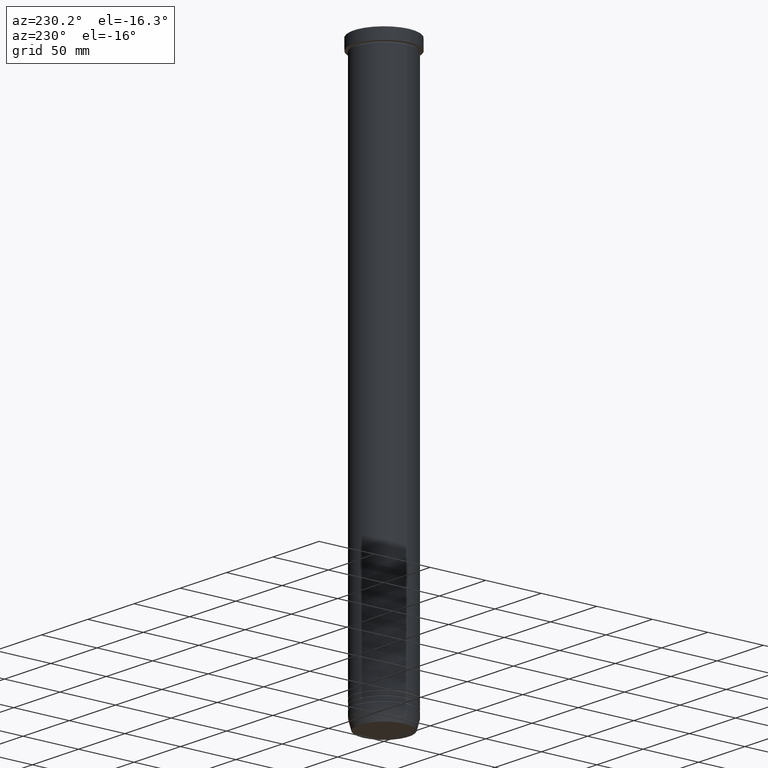
[diagram: clean part render]
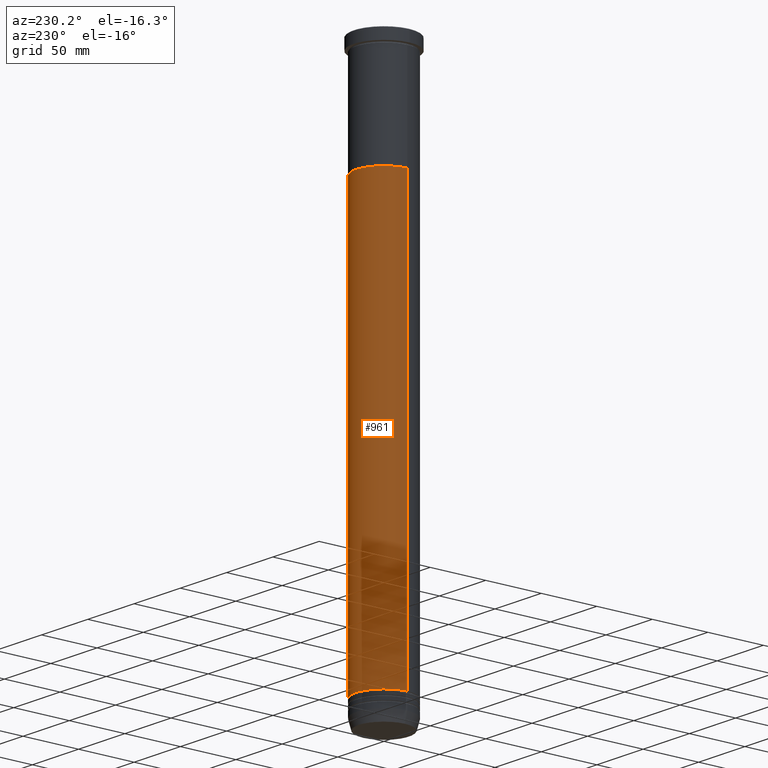
[diagram: same view with one face highlighted and labeled with its STEP entity id]
A machine part, auxiliary view. The second image highlights one B-rep face of the part: STEP entity #961.
In plain terms, the highlighted cylindrical surface (edge-blend (fillet) strip) has radius 25 mm, axis along (-0, -0, 1).
Its self-contained STEP definition (entity closure, byte-faithful):
#19 = CARTESIAN_POINT ( 'NONE',  ( 0.000000000000000000, 0.000000000000000000, 0.000000000000000000 ) ) ;
#23 = DIRECTION ( 'NONE',  ( -0.000000000000000000, -0.000000000000000000, 1.000000000000000000 ) ) ;
#32 = CARTESIAN_POINT ( 'NONE',  ( 0.000000000000000000, 0.000000000000000000, -100.0000000000000000 ) ) ;
#40 = DIRECTION ( 'NONE',  ( 1.000000000000000000, 0.000000000000000000, 0.000000000000000000 ) ) ;
#95 = AXIS2_PLACEMENT_3D ( 'NONE', #32, #683, #104 ) ;
#104 = DIRECTION ( 'NONE',  ( 1.000000000000000000, 0.000000000000000000, 0.000000000000000000 ) ) ;
#105 = CARTESIAN_POINT ( 'NONE',  ( -25.00000000000000355, 3.061616997868383437E-15, -100.0000000000000000 ) ) ;
#123 = VERTEX_POINT ( 'NONE', #378 ) ;
#185 = DIRECTION ( 'NONE',  ( 1.000000000000000000, 0.000000000000000000, 0.000000000000000000 ) ) ;
#189 = FACE_OUTER_BOUND ( 'NONE', #592, .T. ) ;
#206 = CARTESIAN_POINT ( 'NONE',  ( 0.000000000000000000, 0.000000000000000000, -477.0000000000001137 ) ) ;
#271 = DIRECTION ( 'NONE',  ( -0.000000000000000000, -0.000000000000000000, 1.000000000000000000 ) ) ;
#294 = CIRCLE ( 'NONE', #95, 25.00000000000000000 ) ;
#368 = VERTEX_POINT ( 'NONE', #105 ) ;
#373 = CYLINDRICAL_SURFACE ( 'NONE', #632, 24.99999999999999645 ) ;
#378 = CARTESIAN_POINT ( 'NONE',  ( 25.00000000000000000, 0.000000000000000000, -100.0000000000000000 ) ) ;
#424 = ORIENTED_EDGE ( 'NONE', *, *, #509, .F. ) ;
#448 = VECTOR ( 'NONE', #875, 1000.000000000000000 ) ;
#509 = EDGE_CURVE ( 'NONE', #978, #123, #673, .T. ) ;
#568 = EDGE_CURVE ( 'NONE', #978, #819, #696, .T. ) ;
#592 = EDGE_LOOP ( 'NONE', ( #1040, #825, #957, #424 ) ) ;
#632 = AXIS2_PLACEMENT_3D ( 'NONE', #19, #23, #185 ) ;
#673 = LINE ( 'NONE', #826, #950 ) ;
#683 = DIRECTION ( 'NONE',  ( -0.000000000000000000, -0.000000000000000000, 1.000000000000000000 ) ) ;
#694 = EDGE_CURVE ( 'NONE', #819, #368, #1034, .T. ) ;
#696 = CIRCLE ( 'NONE', #860, 24.99999999999999289 ) ;
#755 = CARTESIAN_POINT ( 'NONE',  ( -24.99999999999999289, 3.061616997868382648E-15, -477.0000000000001137 ) ) ;
#779 = DIRECTION ( 'NONE',  ( -0.000000000000000000, -0.000000000000000000, 1.000000000000000000 ) ) ;
#819 = VERTEX_POINT ( 'NONE', #755 ) ;
#825 = ORIENTED_EDGE ( 'NONE', *, *, #694, .T. ) ;
#826 = CARTESIAN_POINT ( 'NONE',  ( 24.99999999999999645, 0.000000000000000000, 0.000000000000000000 ) ) ;
#860 = AXIS2_PLACEMENT_3D ( 'NONE', #206, #779, #40 ) ;
#863 = EDGE_CURVE ( 'NONE', #123, #368, #294, .T. ) ;
#875 = DIRECTION ( 'NONE',  ( -0.000000000000000000, -0.000000000000000000, 1.000000000000000000 ) ) ;
#950 = VECTOR ( 'NONE', #271, 1000.000000000000000 ) ;
#954 = CARTESIAN_POINT ( 'NONE',  ( -24.99999999999999645, 3.061616997868382648E-15, 0.000000000000000000 ) ) ;
#957 = ORIENTED_EDGE ( 'NONE', *, *, #863, .F. ) ;
#961 = ADVANCED_FACE ( 'NONE', ( #189 ), #373, .T. ) ;
#978 = VERTEX_POINT ( 'NONE', #1012 ) ;
#1012 = CARTESIAN_POINT ( 'NONE',  ( 24.99999999999999289, 0.000000000000000000, -477.0000000000001137 ) ) ;
#1034 = LINE ( 'NONE', #954, #448 ) ;
#1040 = ORIENTED_EDGE ( 'NONE', *, *, #568, .T. ) ;